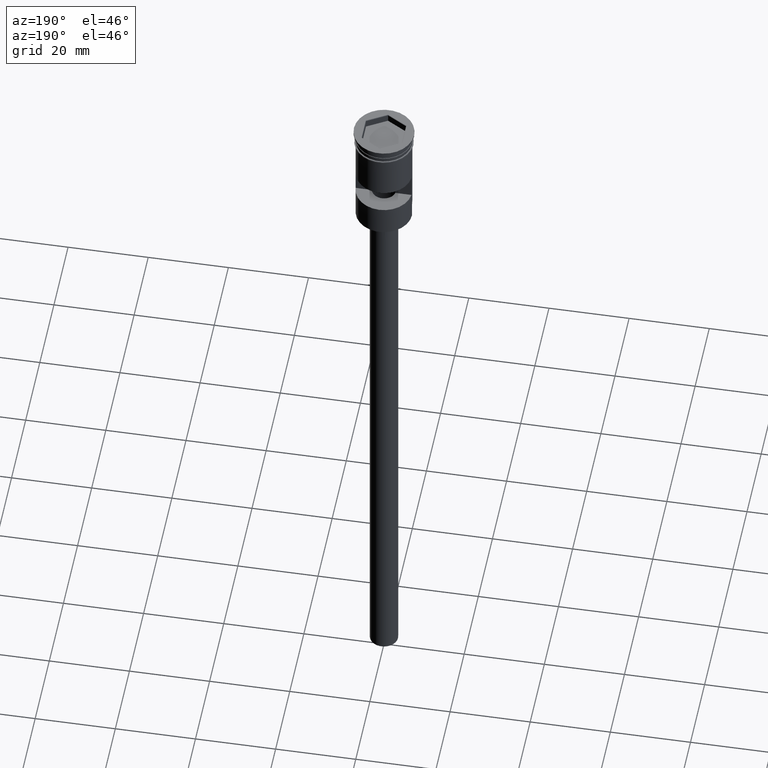
[diagram: clean part render]
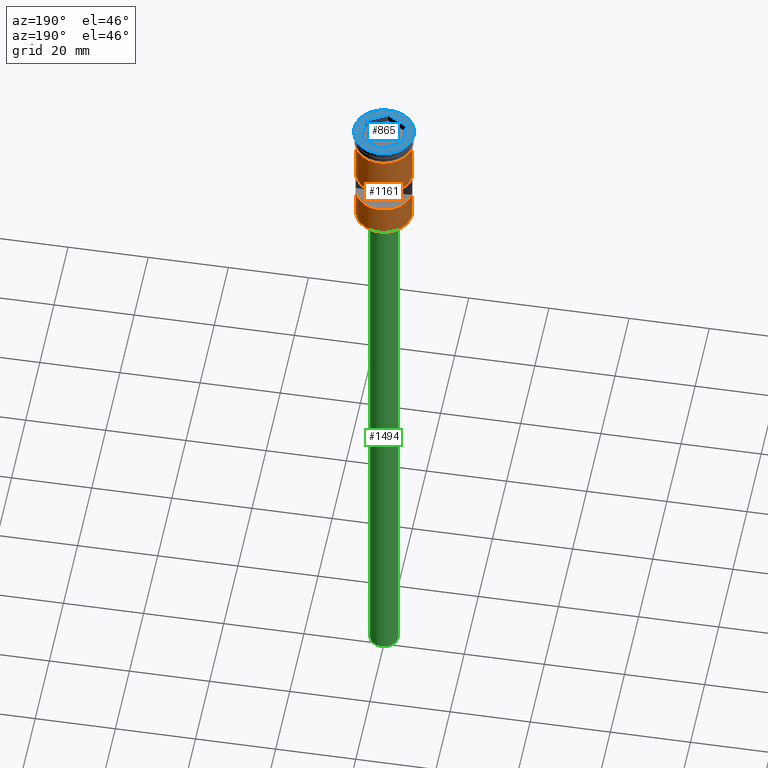
[diagram: same view with three faces highlighted in distinct colors, each labeled with its STEP entity id]
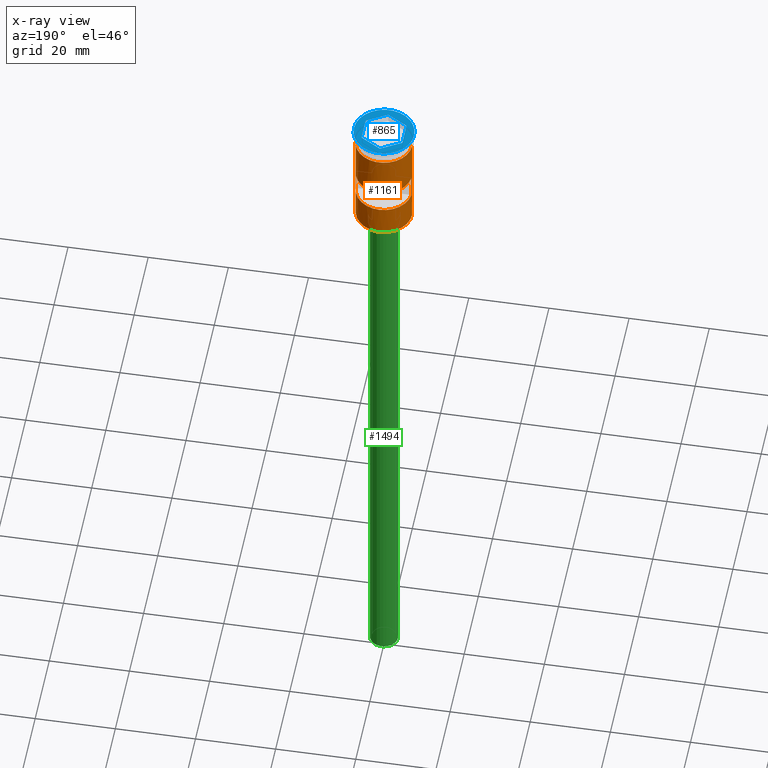
[diagram: x-ray of the same camera — body ghosted, the three highlighted faces saturated]
A machine part, auxiliary view with three faces highlighted in distinct colors.
The next image is the same camera in x-ray (body ghosted, the three faces saturated) — at least one of them is partly hidden behind the body in this view.
Their STEP definitions:

[orange] entity #1161 — the highlighted cylindrical surface (edge-blend (fillet) strip) has radius 7 mm, axis along (-0, -0, 1).
#7 = AXIS2_PLACEMENT_3D ( 'NONE', #1080, #696, #449 ) ;
#14 = VECTOR ( 'NONE', #38, 1000.000000000000000 ) ;
#20 = DIRECTION ( 'NONE',  ( -0.000000000000000000, -0.000000000000000000, 1.000000000000000000 ) ) ;
#38 = DIRECTION ( 'NONE',  ( -0.000000000000000000, -0.000000000000000000, 1.000000000000000000 ) ) ;
#52 = FACE_OUTER_BOUND ( 'NONE', #1573, .T. ) ;
#81 = FACE_BOUND ( 'NONE', #292, .T. ) ;
#85 = EDGE_CURVE ( 'NONE', #306, #631, #450, .T. ) ;
#86 = CARTESIAN_POINT ( 'NONE',  ( -6.999999999999993783, 0.000000000000000000, -28.50000000000000000 ) ) ;
#93 = CIRCLE ( 'NONE', #414, 6.999999999999996447 ) ;
#94 = CIRCLE ( 'NONE', #757, 6.999999999999996447 ) ;
#101 = ORIENTED_EDGE ( 'NONE', *, *, #1376, .T. ) ;
#108 = VERTEX_POINT ( 'NONE', #633 ) ;
#148 = EDGE_CURVE ( 'NONE', #706, #1119, #93, .T. ) ;
#182 = CARTESIAN_POINT ( 'NONE',  ( -6.999999999999993783, 0.000000000000000000, -24.29999999999998295 ) ) ;
#185 = ORIENTED_EDGE ( 'NONE', *, *, #1248, .F. ) ;
#195 = VECTOR ( 'NONE', #919, 1000.000000000000000 ) ;
#243 = VERTEX_POINT ( 'NONE', #731 ) ;
#260 = EDGE_CURVE ( 'NONE', #631, #1510, #1450, .T. ) ;
#264 = DIRECTION ( 'NONE',  ( -0.000000000000000000, -0.000000000000000000, 1.000000000000000000 ) ) ;
#266 = EDGE_CURVE ( 'NONE', #108, #306, #94, .T. ) ;
#292 = EDGE_LOOP ( 'NONE', ( #334, #854, #1246, #718 ) ) ;
#306 = VERTEX_POINT ( 'NONE', #709 ) ;
#322 = VERTEX_POINT ( 'NONE', #1361 ) ;
#334 = ORIENTED_EDGE ( 'NONE', *, *, #266, .F. ) ;
#381 = CARTESIAN_POINT ( 'NONE',  ( -7.000000000000000000, 8.572527594031472204E-16, -3.799999999999998490 ) ) ;
#407 = EDGE_CURVE ( 'NONE', #1510, #108, #947, .T. ) ;
#414 = AXIS2_PLACEMENT_3D ( 'NONE', #975, #1199, #1562 ) ;
#416 = AXIS2_PLACEMENT_3D ( 'NONE', #604, #1236, #484 ) ;
#428 = CARTESIAN_POINT ( 'NONE',  ( -6.974238309665074631, 0.5999999999999999778, 0.000000000000000000 ) ) ;
#445 = VECTOR ( 'NONE', #1516, 1000.000000000000000 ) ;
#448 = EDGE_CURVE ( 'NONE', #322, #1599, #575, .T. ) ;
#449 = DIRECTION ( 'NONE',  ( 1.000000000000000000, 0.000000000000000000, 0.000000000000000000 ) ) ;
#450 = LINE ( 'NONE', #428, #195 ) ;
#459 = VERTEX_POINT ( 'NONE', #182 ) ;
#484 = DIRECTION ( 'NONE',  ( 0.000000000000000000, -1.000000000000000000, 2.478176394252582620E-16 ) ) ;
#527 = CARTESIAN_POINT ( 'NONE',  ( 6.999999999999996447, 0.000000000000000000, 0.000000000000000000 ) ) ;
#575 = CIRCLE ( 'NONE', #7, 6.999999999999999112 ) ;
#604 = CARTESIAN_POINT ( 'NONE',  ( 0.000000000000000000, 0.000000000000000000, -14.50000000000000178 ) ) ;
#631 = VERTEX_POINT ( 'NONE', #650 ) ;
#633 = CARTESIAN_POINT ( 'NONE',  ( 6.974238309665075519, 0.5999999999999999778, -20.50000000000000000 ) ) ;
#638 = CARTESIAN_POINT ( 'NONE',  ( 0.000000000000000000, 0.000000000000000000, -20.50000000000000000 ) ) ;
#650 = CARTESIAN_POINT ( 'NONE',  ( -6.974238309665074631, 0.5999999999999999778, -14.50000000000000178 ) ) ;
#665 = DIRECTION ( 'NONE',  ( -0.000000000000000000, -5.421010862427526114E-16, 1.000000000000000000 ) ) ;
#668 = CYLINDRICAL_SURFACE ( 'NONE', #761, 6.999999999999996447 ) ;
#696 = DIRECTION ( 'NONE',  ( -0.000000000000000000, -0.000000000000000000, 1.000000000000000000 ) ) ;
#706 = VERTEX_POINT ( 'NONE', #1399 ) ;
#709 = CARTESIAN_POINT ( 'NONE',  ( -6.974238309665074631, 0.5999999999999999778, -20.50000000000000000 ) ) ;
#718 = ORIENTED_EDGE ( 'NONE', *, *, #85, .F. ) ;
#731 = CARTESIAN_POINT ( 'NONE',  ( 6.999999999999996447, 8.572527594031468259E-16, -24.29999999999998295 ) ) ;
#745 = LINE ( 'NONE', #1122, #1014 ) ;
#754 = ORIENTED_EDGE ( 'NONE', *, *, #1024, .F. ) ;
#757 = AXIS2_PLACEMENT_3D ( 'NONE', #638, #665, #1281 ) ;
#761 = AXIS2_PLACEMENT_3D ( 'NONE', #1190, #927, #1423 ) ;
#778 = ORIENTED_EDGE ( 'NONE', *, *, #148, .T. ) ;
#789 = DIRECTION ( 'NONE',  ( 0.000000000000000000, 0.000000000000000000, -1.000000000000000000 ) ) ;
#854 = ORIENTED_EDGE ( 'NONE', *, *, #407, .F. ) ;
#883 = LINE ( 'NONE', #527, #989 ) ;
#917 = CARTESIAN_POINT ( 'NONE',  ( 6.974238309665074631, 0.5999999999999999778, 0.000000000000000000 ) ) ;
#919 = DIRECTION ( 'NONE',  ( -0.000000000000000000, -0.000000000000000000, 1.000000000000000000 ) ) ;
#927 = DIRECTION ( 'NONE',  ( -0.000000000000000000, -0.000000000000000000, 1.000000000000000000 ) ) ;
#947 = LINE ( 'NONE', #917, #1009 ) ;
#975 = CARTESIAN_POINT ( 'NONE',  ( 0.000000000000000000, 0.000000000000000000, -28.29999999999999361 ) ) ;
#989 = VECTOR ( 'NONE', #264, 1000.000000000000000 ) ;
#997 = CARTESIAN_POINT ( 'NONE',  ( -6.999999999999996447, 8.572527594031468259E-16, 0.000000000000000000 ) ) ;
#1009 = VECTOR ( 'NONE', #789, 1000.000000000000000 ) ;
#1014 = VECTOR ( 'NONE', #20, 1000.000000000000000 ) ;
#1016 = LINE ( 'NONE', #86, #14 ) ;
#1024 = EDGE_CURVE ( 'NONE', #706, #243, #745, .T. ) ;
#1031 = LINE ( 'NONE', #997, #445 ) ;
#1032 = ORIENTED_EDGE ( 'NONE', *, *, #448, .F. ) ;
#1075 = CARTESIAN_POINT ( 'NONE',  ( 6.974238309665075519, 0.5999999999999999778, -14.50000000000000178 ) ) ;
#1080 = CARTESIAN_POINT ( 'NONE',  ( 0.000000000000000000, 0.000000000000000000, -3.799999999999998490 ) ) ;
#1119 = VERTEX_POINT ( 'NONE', #1333 ) ;
#1122 = CARTESIAN_POINT ( 'NONE',  ( 6.999999999999993783, 8.572527594031465301E-16, -28.50000000000000000 ) ) ;
#1161 = ADVANCED_FACE ( 'NONE', ( #81, #52 ), #668, .T. ) ;
#1190 = CARTESIAN_POINT ( 'NONE',  ( 0.000000000000000000, 0.000000000000000000, 0.000000000000000000 ) ) ;
#1199 = DIRECTION ( 'NONE',  ( 0.000000000000000000, 0.000000000000000000, 1.000000000000000000 ) ) ;
#1226 = ORIENTED_EDGE ( 'NONE', *, *, #1284, .T. ) ;
#1236 = DIRECTION ( 'NONE',  ( -0.000000000000000000, -2.710505431213763057E-16, -1.000000000000000000 ) ) ;
#1246 = ORIENTED_EDGE ( 'NONE', *, *, #260, .F. ) ;
#1248 = EDGE_CURVE ( 'NONE', #243, #322, #883, .T. ) ;
#1281 = DIRECTION ( 'NONE',  ( 0.000000000000000000, 1.000000000000000000, 4.956352788505165240E-16 ) ) ;
#1284 = EDGE_CURVE ( 'NONE', #459, #1599, #1031, .T. ) ;
#1333 = CARTESIAN_POINT ( 'NONE',  ( -6.999999999999993783, 0.000000000000000000, -28.29999999999999361 ) ) ;
#1361 = CARTESIAN_POINT ( 'NONE',  ( 6.999999999999999112, 0.000000000000000000, -3.799999999999998490 ) ) ;
#1376 = EDGE_CURVE ( 'NONE', #1119, #459, #1016, .T. ) ;
#1399 = CARTESIAN_POINT ( 'NONE',  ( 6.999999999999993783, 8.572527594031465301E-16, -28.29999999999999361 ) ) ;
#1423 = DIRECTION ( 'NONE',  ( 1.000000000000000000, 0.000000000000000000, 0.000000000000000000 ) ) ;
#1450 = CIRCLE ( 'NONE', #416, 6.999999999999996447 ) ;
#1510 = VERTEX_POINT ( 'NONE', #1075 ) ;
#1516 = DIRECTION ( 'NONE',  ( -0.000000000000000000, -0.000000000000000000, 1.000000000000000000 ) ) ;
#1562 = DIRECTION ( 'NONE',  ( -1.000000000000000000, 0.000000000000000000, 0.000000000000000000 ) ) ;
#1573 = EDGE_LOOP ( 'NONE', ( #101, #1226, #1032, #185, #754, #778 ) ) ;
#1599 = VERTEX_POINT ( 'NONE', #381 ) ;

[blue] entity #865 — the highlighted planar face has unit normal (0, -0, 1).
#11 = VECTOR ( 'NONE', #521, 1000.000000000000114 ) ;
#15 = CARTESIAN_POINT ( 'NONE',  ( 7.500000000000000000, 0.000000000000000000, 0.000000000000000000 ) ) ;
#82 = DIRECTION ( 'NONE',  ( -0.000000000000000000, -0.000000000000000000, 1.000000000000000000 ) ) ;
#146 = ORIENTED_EDGE ( 'NONE', *, *, #692, .T. ) ;
#172 = ORIENTED_EDGE ( 'NONE', *, *, #736, .T. ) ;
#197 = VERTEX_POINT ( 'NONE', #974 ) ;
#272 = LINE ( 'NONE', #749, #1013 ) ;
#313 = LINE ( 'NONE', #534, #11 ) ;
#333 = DIRECTION ( 'NONE',  ( 1.000000000000000000, 0.000000000000000000, 0.000000000000000000 ) ) ;
#340 = ORIENTED_EDGE ( 'NONE', *, *, #760, .T. ) ;
#355 = VERTEX_POINT ( 'NONE', #541 ) ;
#378 = DIRECTION ( 'NONE',  ( 0.000000000000000000, 1.000000000000000000, 0.000000000000000000 ) ) ;
#395 = EDGE_CURVE ( 'NONE', #355, #1279, #1273, .T. ) ;
#412 = PLANE ( 'NONE',  #1531 ) ;
#438 = LINE ( 'NONE', #932, #842 ) ;
#480 = ORIENTED_EDGE ( 'NONE', *, *, #882, .T. ) ;
#489 = LINE ( 'NONE', #1485, #845 ) ;
#519 = CARTESIAN_POINT ( 'NONE',  ( 5.050000000000000711, 2.973353886326576045, 0.000000000000000000 ) ) ;
#521 = DIRECTION ( 'NONE',  ( 0.8660254037844385966, 0.4999999999999999445, 0.000000000000000000 ) ) ;
#532 = DIRECTION ( 'NONE',  ( -0.8660254037844387076, 0.4999999999999998335, 0.000000000000000000 ) ) ;
#534 = CARTESIAN_POINT ( 'NONE',  ( -0.05000000000000093953, 5.860105232274702480, 0.000000000000000000 ) ) ;
#541 = CARTESIAN_POINT ( 'NONE',  ( -7.500000000000000000, 9.184850993605147944E-16, 0.000000000000000000 ) ) ;
#580 = CARTESIAN_POINT ( 'NONE',  ( 0.000000000000000000, 0.000000000000000000, 0.000000000000000000 ) ) ;
#624 = VECTOR ( 'NONE', #806, 1000.000000000000000 ) ;
#653 = CARTESIAN_POINT ( 'NONE',  ( 6.485146259703940858E-16, -5.888972745734185388, 0.000000000000000000 ) ) ;
#657 = VERTEX_POINT ( 'NONE', #1059 ) ;
#690 = CARTESIAN_POINT ( 'NONE',  ( 0.000000000000000000, 0.000000000000000000, 0.000000000000000000 ) ) ;
#692 = EDGE_CURVE ( 'NONE', #1279, #355, #786, .T. ) ;
#707 = AXIS2_PLACEMENT_3D ( 'NONE', #690, #82, #1184 ) ;
#711 = ORIENTED_EDGE ( 'NONE', *, *, #856, .T. ) ;
#734 = EDGE_LOOP ( 'NONE', ( #1426, #1341, #711, #340, #172, #480 ) ) ;
#736 = EDGE_CURVE ( 'NONE', #197, #1418, #272, .T. ) ;
#749 = CARTESIAN_POINT ( 'NONE',  ( 0.05000000000000229955, -5.860105232274703368, 0.000000000000000000 ) ) ;
#760 = EDGE_CURVE ( 'NONE', #1546, #197, #1511, .T. ) ;
#786 = CIRCLE ( 'NONE', #822, 7.500000000000000000 ) ;
#806 = DIRECTION ( 'NONE',  ( 0.8660254037844388186, -0.4999999999999996669, 0.000000000000000000 ) ) ;
#821 = VERTEX_POINT ( 'NONE', #1086 ) ;
#822 = AXIS2_PLACEMENT_3D ( 'NONE', #580, #1103, #1460 ) ;
#842 = VECTOR ( 'NONE', #532, 1000.000000000000000 ) ;
#845 = VECTOR ( 'NONE', #378, 1000.000000000000000 ) ;
#856 = EDGE_CURVE ( 'NONE', #657, #1546, #1153, .T. ) ;
#865 = ADVANCED_FACE ( 'NONE', ( #1293, #1198 ), #412, .T. ) ;
#882 = EDGE_CURVE ( 'NONE', #1418, #821, #438, .T. ) ;
#932 = CARTESIAN_POINT ( 'NONE',  ( -5.049999999999999822, -2.973353886326575601, 0.000000000000000000 ) ) ;
#963 = CARTESIAN_POINT ( 'NONE',  ( 5.100000000000001421, 2.944486372867094470, 0.000000000000000000 ) ) ;
#974 = CARTESIAN_POINT ( 'NONE',  ( 5.100000000000001421, -2.944486372867094026, 0.000000000000000000 ) ) ;
#978 = CARTESIAN_POINT ( 'NONE',  ( -5.100000000000001421, 2.944486372867091806, 0.000000000000000000 ) ) ;
#1013 = VECTOR ( 'NONE', #1262, 1000.000000000000000 ) ;
#1030 = ORIENTED_EDGE ( 'NONE', *, *, #395, .T. ) ;
#1053 = EDGE_CURVE ( 'NONE', #821, #1602, #489, .T. ) ;
#1059 = CARTESIAN_POINT ( 'NONE',  ( 4.725224118234917529E-17, 5.888972745734183611, 0.000000000000000000 ) ) ;
#1074 = EDGE_LOOP ( 'NONE', ( #146, #1030 ) ) ;
#1086 = CARTESIAN_POINT ( 'NONE',  ( -5.100000000000001421, -2.944486372867093582, 0.000000000000000000 ) ) ;
#1103 = DIRECTION ( 'NONE',  ( -0.000000000000000000, -0.000000000000000000, 1.000000000000000000 ) ) ;
#1153 = LINE ( 'NONE', #519, #624 ) ;
#1162 = EDGE_CURVE ( 'NONE', #1602, #657, #313, .T. ) ;
#1184 = DIRECTION ( 'NONE',  ( 1.000000000000000000, 0.000000000000000000, 0.000000000000000000 ) ) ;
#1198 = FACE_OUTER_BOUND ( 'NONE', #1074, .T. ) ;
#1262 = DIRECTION ( 'NONE',  ( -0.8660254037844387076, -0.4999999999999998890, 0.000000000000000000 ) ) ;
#1273 = CIRCLE ( 'NONE', #707, 7.500000000000000000 ) ;
#1279 = VERTEX_POINT ( 'NONE', #15 ) ;
#1293 = FACE_BOUND ( 'NONE', #734, .T. ) ;
#1341 = ORIENTED_EDGE ( 'NONE', *, *, #1162, .T. ) ;
#1359 = DIRECTION ( 'NONE',  ( 0.000000000000000000, -1.000000000000000000, -0.000000000000000000 ) ) ;
#1418 = VERTEX_POINT ( 'NONE', #653 ) ;
#1426 = ORIENTED_EDGE ( 'NONE', *, *, #1053, .T. ) ;
#1460 = DIRECTION ( 'NONE',  ( 1.000000000000000000, 0.000000000000000000, 0.000000000000000000 ) ) ;
#1485 = CARTESIAN_POINT ( 'NONE',  ( -5.100000000000001421, 2.886751345948128655, 0.000000000000000000 ) ) ;
#1490 = CARTESIAN_POINT ( 'NONE',  ( 5.100000000000001421, -2.886751345948129543, 0.000000000000000000 ) ) ;
#1502 = VECTOR ( 'NONE', #1359, 1000.000000000000000 ) ;
#1511 = LINE ( 'NONE', #1490, #1502 ) ;
#1531 = AXIS2_PLACEMENT_3D ( 'NONE', #1543, #1549, #333 ) ;
#1543 = CARTESIAN_POINT ( 'NONE',  ( 0.000000000000000000, 0.000000000000000000, 0.000000000000000000 ) ) ;
#1546 = VERTEX_POINT ( 'NONE', #963 ) ;
#1549 = DIRECTION ( 'NONE',  ( 0.000000000000000000, -0.000000000000000000, 1.000000000000000000 ) ) ;
#1602 = VERTEX_POINT ( 'NONE', #978 ) ;

[green] entity #1494 — the highlighted cylindrical surface (edge-blend (fillet) strip) has radius 3.5 mm, axis along (-0, -0, 1).
#12 = VERTEX_POINT ( 'NONE', #1347 ) ;
#132 = DIRECTION ( 'NONE',  ( -0.000000000000000000, -0.000000000000000000, 1.000000000000000000 ) ) ;
#175 = EDGE_CURVE ( 'NONE', #620, #1363, #1327, .T. ) ;
#227 = CIRCLE ( 'NONE', #1401, 3.500000000000000444 ) ;
#247 = CYLINDRICAL_SURFACE ( 'NONE', #1017, 3.500000000000000444 ) ;
#287 = DIRECTION ( 'NONE',  ( 0.000000000000000000, 0.000000000000000000, -1.000000000000000000 ) ) ;
#348 = VECTOR ( 'NONE', #790, 1000.000000000000000 ) ;
#387 = VECTOR ( 'NONE', #890, 1000.000000000000000 ) ;
#436 = ORIENTED_EDGE ( 'NONE', *, *, #617, .T. ) ;
#463 = CARTESIAN_POINT ( 'NONE',  ( 3.500000000000000444, 0.000000000000000000, -31.50000000000000000 ) ) ;
#478 = DIRECTION ( 'NONE',  ( 0.000000000000000000, 0.000000000000000000, -1.000000000000000000 ) ) ;
#507 = CARTESIAN_POINT ( 'NONE',  ( 3.500000000000000444, 0.000000000000000000, -178.5000000000000000 ) ) ;
#553 = CARTESIAN_POINT ( 'NONE',  ( 0.000000000000000000, 0.000000000000000000, -31.50000000000000000 ) ) ;
#599 = EDGE_CURVE ( 'NONE', #1363, #1529, #1029, .T. ) ;
#617 = EDGE_CURVE ( 'NONE', #620, #12, #1036, .T. ) ;
#620 = VERTEX_POINT ( 'NONE', #1512 ) ;
#698 = ORIENTED_EDGE ( 'NONE', *, *, #599, .F. ) ;
#701 = EDGE_CURVE ( 'NONE', #12, #1529, #227, .T. ) ;
#782 = DIRECTION ( 'NONE',  ( -1.000000000000000000, 0.000000000000000000, 0.000000000000000000 ) ) ;
#790 = DIRECTION ( 'NONE',  ( -0.000000000000000000, -0.000000000000000000, 1.000000000000000000 ) ) ;
#835 = CARTESIAN_POINT ( 'NONE',  ( 0.000000000000000000, 0.000000000000000000, -178.5000000000000000 ) ) ;
#864 = CARTESIAN_POINT ( 'NONE',  ( 0.000000000000000000, 0.000000000000000000, -178.5000000000000000 ) ) ;
#890 = DIRECTION ( 'NONE',  ( -0.000000000000000000, -0.000000000000000000, 1.000000000000000000 ) ) ;
#921 = EDGE_LOOP ( 'NONE', ( #1438, #436, #1001, #698 ) ) ;
#945 = DIRECTION ( 'NONE',  ( -1.000000000000000000, 0.000000000000000000, 0.000000000000000000 ) ) ;
#1001 = ORIENTED_EDGE ( 'NONE', *, *, #701, .T. ) ;
#1017 = AXIS2_PLACEMENT_3D ( 'NONE', #835, #132, #1465 ) ;
#1029 = LINE ( 'NONE', #1392, #348 ) ;
#1036 = LINE ( 'NONE', #1521, #387 ) ;
#1093 = FACE_OUTER_BOUND ( 'NONE', #921, .T. ) ;
#1327 = CIRCLE ( 'NONE', #1526, 3.500000000000000444 ) ;
#1347 = CARTESIAN_POINT ( 'NONE',  ( -3.500000000000000444, 4.286263797015737088E-16, -31.50000000000000000 ) ) ;
#1363 = VERTEX_POINT ( 'NONE', #507 ) ;
#1392 = CARTESIAN_POINT ( 'NONE',  ( 3.500000000000000444, 0.000000000000000000, -178.5000000000000000 ) ) ;
#1401 = AXIS2_PLACEMENT_3D ( 'NONE', #553, #287, #782 ) ;
#1438 = ORIENTED_EDGE ( 'NONE', *, *, #175, .F. ) ;
#1465 = DIRECTION ( 'NONE',  ( 1.000000000000000000, 0.000000000000000000, 0.000000000000000000 ) ) ;
#1494 = ADVANCED_FACE ( 'NONE', ( #1093 ), #247, .T. ) ;
#1512 = CARTESIAN_POINT ( 'NONE',  ( -3.500000000000000444, 4.286263797015737088E-16, -178.5000000000000000 ) ) ;
#1521 = CARTESIAN_POINT ( 'NONE',  ( -3.500000000000000444, 4.286263797015737088E-16, -178.5000000000000000 ) ) ;
#1526 = AXIS2_PLACEMENT_3D ( 'NONE', #864, #478, #945 ) ;
#1529 = VERTEX_POINT ( 'NONE', #463 ) ;